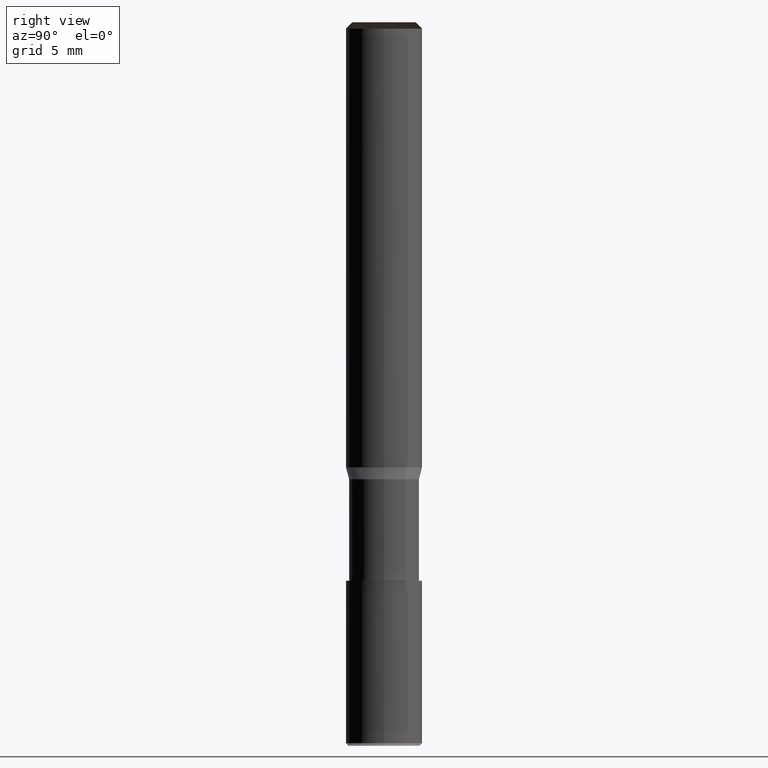
[diagram: clean part render]
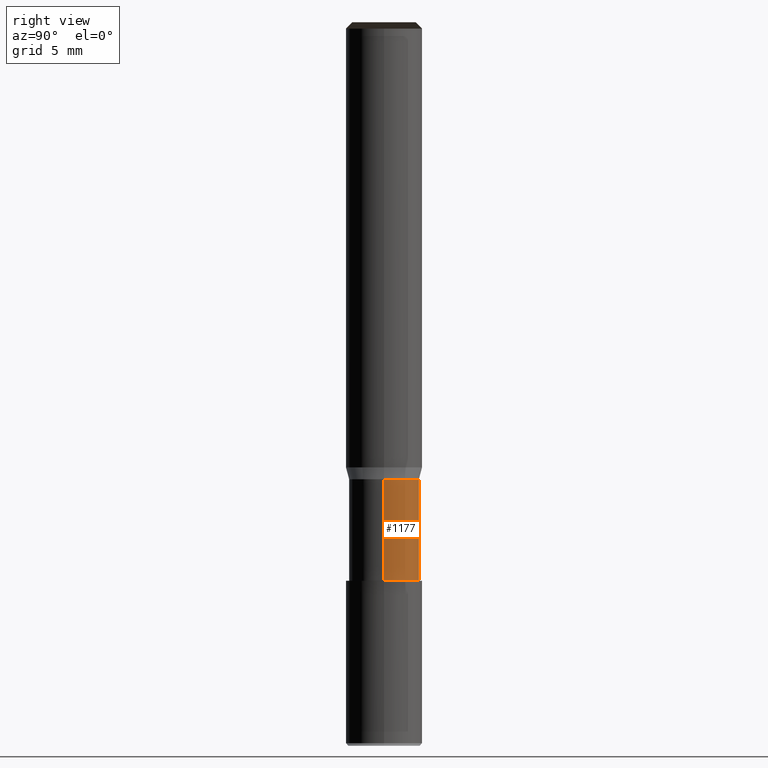
[diagram: same view with one face highlighted and labeled with its STEP entity id]
A machine part, right view. The second image highlights one B-rep face of the part: STEP entity #1177.
In plain terms, the highlighted face is a freeform B-spline surface patch.
Its self-contained STEP definition (entity closure, byte-faithful):
#946=CARTESIAN_POINT('',(2.75,0.0,-8.93300989));
#947=CARTESIAN_POINT('',(2.75,2.75,-8.93300989));
#948=CARTESIAN_POINT('',(0.0,2.75,-8.93300989));
#949=CARTESIAN_POINT('',(-2.75,2.75,-8.93300989));
#950=CARTESIAN_POINT('',(-2.75,0.0,-8.93300989));
#951=CARTESIAN_POINT('',(2.75,0.0,-0.93300989));
#952=CARTESIAN_POINT('',(2.75,2.75,-0.93300989));
#953=CARTESIAN_POINT('',(0.0,2.75,-0.93300989));
#954=CARTESIAN_POINT('',(-2.75,2.75,-0.93300989));
#955=CARTESIAN_POINT('',(-2.75,0.0,-0.93300989));
#1158=(
BOUNDED_SURFACE()
B_SPLINE_SURFACE(1,2,(
(#946,#947,#948,#949,#950),
(#951,#952,#953,#954,#955)
), .UNSPECIFIED.,.F.,.F.,.F.)
B_SPLINE_SURFACE_WITH_KNOTS((2,2),(3,2,3),(
0.0,1.0),(
0.0,0.5,1.0), .UNSPECIFIED.)
GEOMETRIC_REPRESENTATION_ITEM()
RATIONAL_B_SPLINE_SURFACE(((1.0,0.707106781187,1.0,0.707106781187,1.0),
(1.0,0.707106781187,1.0,0.707106781187,1.0)
))
REPRESENTATION_ITEM('')
SURFACE()
);
#1159=(
BOUNDED_CURVE()
B_SPLINE_CURVE(2,(#951,#952,#953,#954,#955),.UNSPECIFIED.,.F.,.F.)
B_SPLINE_CURVE_WITH_KNOTS((3,2,3),
(0.0,0.5,1.0),.UNSPECIFIED.)
CURVE()
GEOMETRIC_REPRESENTATION_ITEM()
RATIONAL_B_SPLINE_CURVE((1.0,0.707106781187,1.0,0.707106781187,1.0))
REPRESENTATION_ITEM('')
);
#1160=(
BOUNDED_CURVE()
B_SPLINE_CURVE(1,(#955,#950),.UNSPECIFIED.,.F.,.F.)
B_SPLINE_CURVE_WITH_KNOTS((2,2),
(0.0,1.0),.UNSPECIFIED.)
CURVE()
GEOMETRIC_REPRESENTATION_ITEM()
RATIONAL_B_SPLINE_CURVE((1.0,1.0))
REPRESENTATION_ITEM('')
);
#1161=(
BOUNDED_CURVE()
B_SPLINE_CURVE(2,(#950,#949,#948,#947,#946),.UNSPECIFIED.,.F.,.F.)
B_SPLINE_CURVE_WITH_KNOTS((3,2,3),
(0.0,0.5,1.0),.UNSPECIFIED.)
CURVE()
GEOMETRIC_REPRESENTATION_ITEM()
RATIONAL_B_SPLINE_CURVE((1.0,0.707106781187,1.0,0.707106781187,1.0))
REPRESENTATION_ITEM('')
);
#1162=(
BOUNDED_CURVE()
B_SPLINE_CURVE(1,(#946,#951),.UNSPECIFIED.,.F.,.F.)
B_SPLINE_CURVE_WITH_KNOTS((2,2),
(0.0,1.0),.UNSPECIFIED.)
CURVE()
GEOMETRIC_REPRESENTATION_ITEM()
RATIONAL_B_SPLINE_CURVE((1.0,1.0))
REPRESENTATION_ITEM('')
);
#1163=VERTEX_POINT('',#946);
#1164=VERTEX_POINT('',#950);
#1165=VERTEX_POINT('',#951);
#1166=VERTEX_POINT('',#955);
#1167=EDGE_CURVE('',#1165,#1166,#1159,.T.);
#1168=EDGE_CURVE('',#1166,#1164,#1160,.T.);
#1169=EDGE_CURVE('',#1164,#1163,#1161,.T.);
#1170=EDGE_CURVE('',#1163,#1165,#1162,.T.);
#1171=ORIENTED_EDGE('',*,*,#1167,.T.);
#1172=ORIENTED_EDGE('',*,*,#1168,.T.);
#1173=ORIENTED_EDGE('',*,*,#1169,.T.);
#1174=ORIENTED_EDGE('',*,*,#1170,.T.);
#1175=EDGE_LOOP('',(#1171,#1172,#1173,#1174));
#1176=FACE_OUTER_BOUND('',#1175,.T.);
#1177=ADVANCED_FACE('',(#1176),#1158,.T.);